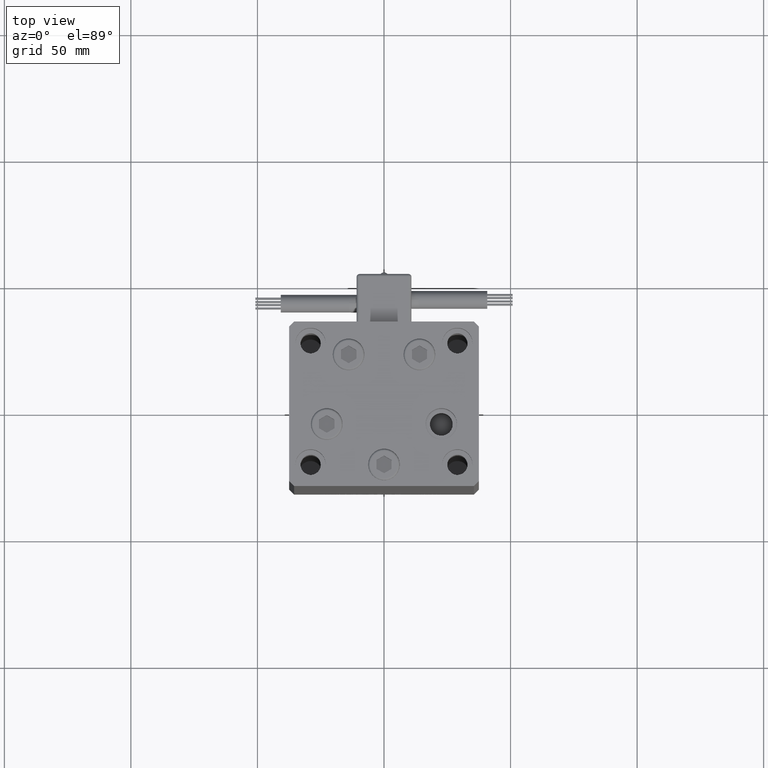
[diagram: clean part render]
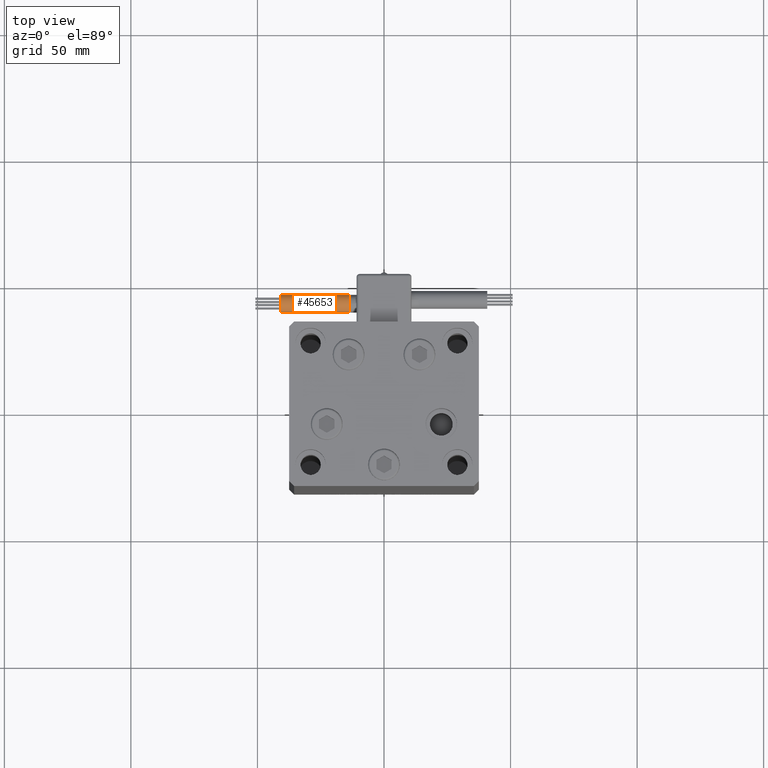
[diagram: same view with one face highlighted and labeled with its STEP entity id]
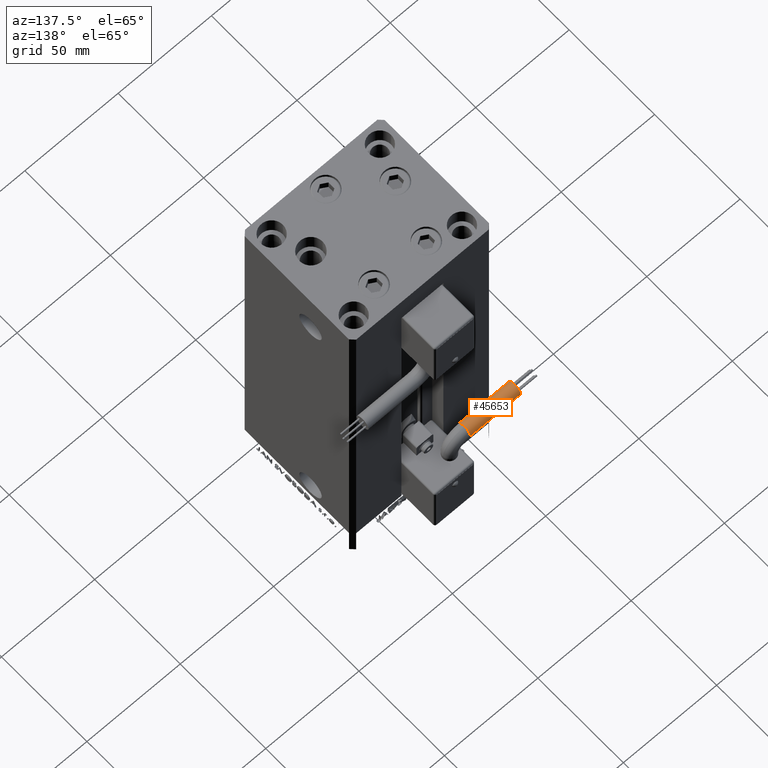
[diagram: same view with one face highlighted and labeled with its STEP entity id]
A machine part, top view. The second image highlights one B-rep face of the part: STEP entity #45653.
A second angle (auxiliary view) of the same face is appended — the face is thin or edge-on in the first view.
In plain terms, the highlighted cylindrical surface (edge-blend (fillet) strip) has radius 3.5 mm, axis along (-1, 0, -0).
Its self-contained STEP definition (entity closure, byte-faithful):
#66 = VECTOR ( 'NONE', #13389, 1000.000000000000000 ) ;
#1393 = EDGE_CURVE ( 'NONE', #48952, #40951, #27975, .T. ) ;
#1546 = CARTESIAN_POINT ( 'NONE',  ( 13.79999999999999893, 42.00000000000000000, -65.00000000000000000 ) ) ;
#2074 = DIRECTION ( 'NONE',  ( 1.000000000000000000, -2.599999999999999847E-16, 2.220446049250000002E-16 ) ) ;
#4705 = AXIS2_PLACEMENT_3D ( 'NONE', #48720, #44654, #44925 ) ;
#5797 = DIRECTION ( 'NONE',  ( 0.000000000000000000, 0.000000000000000000, -1.000000000000000000 ) ) ;
#5844 = CARTESIAN_POINT ( 'NONE',  ( 13.80000000000000071, 45.50000000000000711, -65.00000000000000000 ) ) ;
#5977 = CARTESIAN_POINT ( 'NONE',  ( 13.79999999999999893, 45.50000000000000711, -65.00000000000000000 ) ) ;
#8486 = EDGE_CURVE ( 'NONE', #23869, #20392, #12792, .T. ) ;
#9101 = ORIENTED_EDGE ( 'NONE', *, *, #8486, .F. ) ;
#12792 = CIRCLE ( 'NONE', #30023, 3.500000000000003109 ) ;
#13389 = DIRECTION ( 'NONE',  ( 1.000000000000000000, -2.599999999999999847E-16, 2.220446049250000002E-16 ) ) ;
#13899 = DIRECTION ( 'NONE',  ( 1.000000000000000000, 0.000000000000000000, 2.220446049250000002E-16 ) ) ;
#13966 = CARTESIAN_POINT ( 'NONE',  ( 13.79999999999999893, 38.50000000000000000, -65.00000000000000000 ) ) ;
#15188 = LINE ( 'NONE', #5844, #42669 ) ;
#16240 = CARTESIAN_POINT ( 'NONE',  ( 40.80000000000000426, 38.50000000000000000, -65.00000000000000000 ) ) ;
#17669 = EDGE_LOOP ( 'NONE', ( #29015, #18902, #29236, #9101, #48156 ) ) ;
#18199 = EDGE_CURVE ( 'NONE', #48952, #23869, #25814, .T. ) ;
#18546 = DIRECTION ( 'NONE',  ( -4.956352788505158337E-16, -1.000000000000000000, 0.000000000000000000 ) ) ;
#18902 = ORIENTED_EDGE ( 'NONE', *, *, #21513, .T. ) ;
#20392 = VERTEX_POINT ( 'NONE', #48314 ) ;
#21513 = EDGE_CURVE ( 'NONE', #40951, #24506, #33887, .T. ) ;
#23869 = VERTEX_POINT ( 'NONE', #16240 ) ;
#24506 = VERTEX_POINT ( 'NONE', #5977 ) ;
#25814 = LINE ( 'NONE', #50445, #66 ) ;
#27975 = CIRCLE ( 'NONE', #4705, 3.500000000000003109 ) ;
#29015 = ORIENTED_EDGE ( 'NONE', *, *, #1393, .T. ) ;
#29033 = EDGE_CURVE ( 'NONE', #24506, #20392, #15188, .T. ) ;
#29236 = ORIENTED_EDGE ( 'NONE', *, *, #29033, .T. ) ;
#30023 = AXIS2_PLACEMENT_3D ( 'NONE', #47938, #43344, #37032 ) ;
#30171 = CYLINDRICAL_SURFACE ( 'NONE', #37766, 3.500000000000003109 ) ;
#33651 = CARTESIAN_POINT ( 'NONE',  ( 13.79999999999999893, 42.00000000000000000, -65.00000000000000000 ) ) ;
#33887 = CIRCLE ( 'NONE', #39911, 3.500000000000003109 ) ;
#37032 = DIRECTION ( 'NONE',  ( 0.000000000000000000, 0.000000000000000000, -1.000000000000000000 ) ) ;
#37766 = AXIS2_PLACEMENT_3D ( 'NONE', #1546, #2074, #18546 ) ;
#39911 = AXIS2_PLACEMENT_3D ( 'NONE', #33651, #13899, #5797 ) ;
#40951 = VERTEX_POINT ( 'NONE', #51055 ) ;
#42669 = VECTOR ( 'NONE', #52258, 1000.000000000000000 ) ;
#43344 = DIRECTION ( 'NONE',  ( 1.000000000000000000, 0.000000000000000000, 2.220446049250000002E-16 ) ) ;
#44654 = DIRECTION ( 'NONE',  ( 1.000000000000000000, 0.000000000000000000, 2.220446049250000002E-16 ) ) ;
#44925 = DIRECTION ( 'NONE',  ( 0.000000000000000000, 0.000000000000000000, -1.000000000000000000 ) ) ;
#45653 = ADVANCED_FACE ( 'NONE', ( #50757 ), #30171, .T. ) ;
#47938 = CARTESIAN_POINT ( 'NONE',  ( 40.80000000000000426, 42.00000000000000000, -65.00000000000000000 ) ) ;
#48156 = ORIENTED_EDGE ( 'NONE', *, *, #18199, .F. ) ;
#48314 = CARTESIAN_POINT ( 'NONE',  ( 40.80000000000000426, 45.50000000000000711, -65.00000000000000000 ) ) ;
#48720 = CARTESIAN_POINT ( 'NONE',  ( 13.79999999999999893, 42.00000000000000000, -65.00000000000000000 ) ) ;
#48952 = VERTEX_POINT ( 'NONE', #13966 ) ;
#50445 = CARTESIAN_POINT ( 'NONE',  ( 13.79999999999999716, 38.50000000000000000, -65.00000000000000000 ) ) ;
#50757 = FACE_OUTER_BOUND ( 'NONE', #17669, .T. ) ;
#51055 = CARTESIAN_POINT ( 'NONE',  ( 13.79999999999999893, 42.00000000000000000, -68.50000000000000000 ) ) ;
#52258 = DIRECTION ( 'NONE',  ( 1.000000000000000000, -2.599999999999999847E-16, 2.220446049250000002E-16 ) ) ;